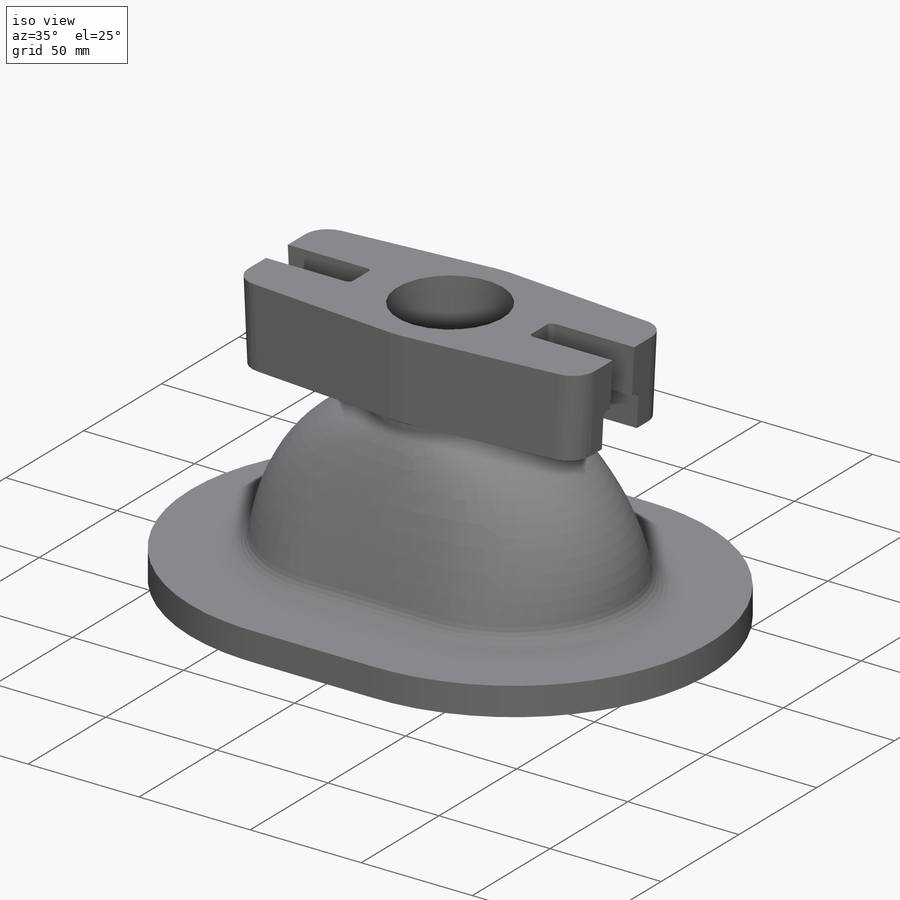
[diagram: iso view]
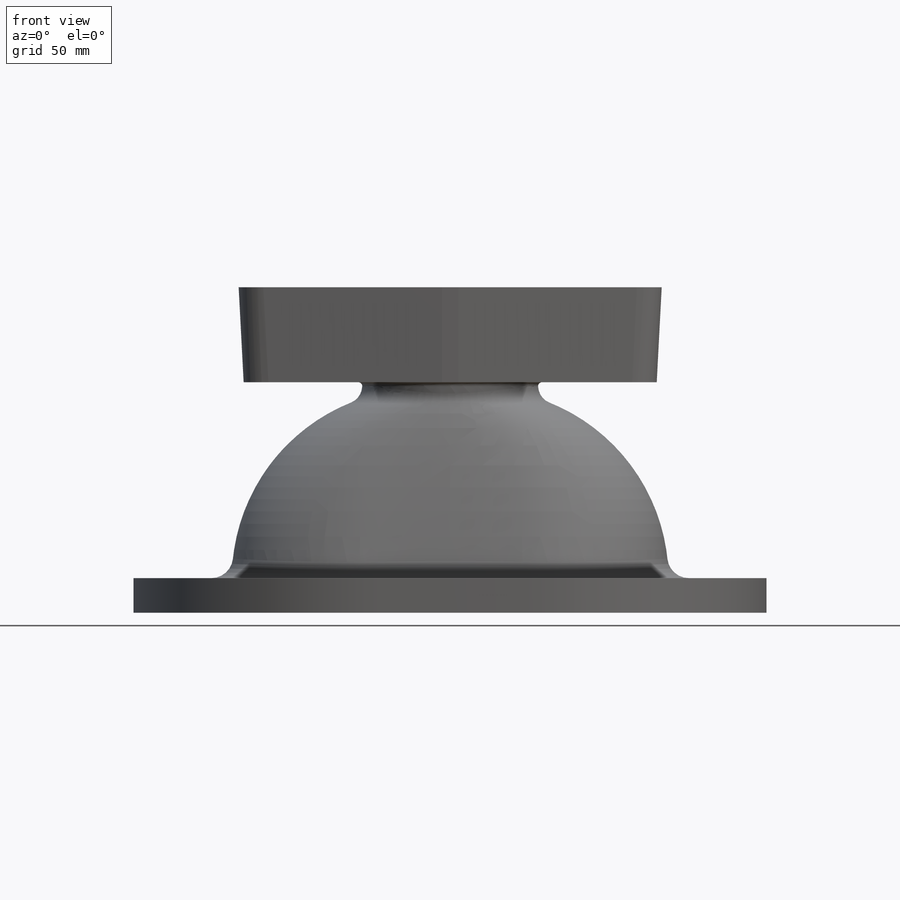
[diagram: front view]
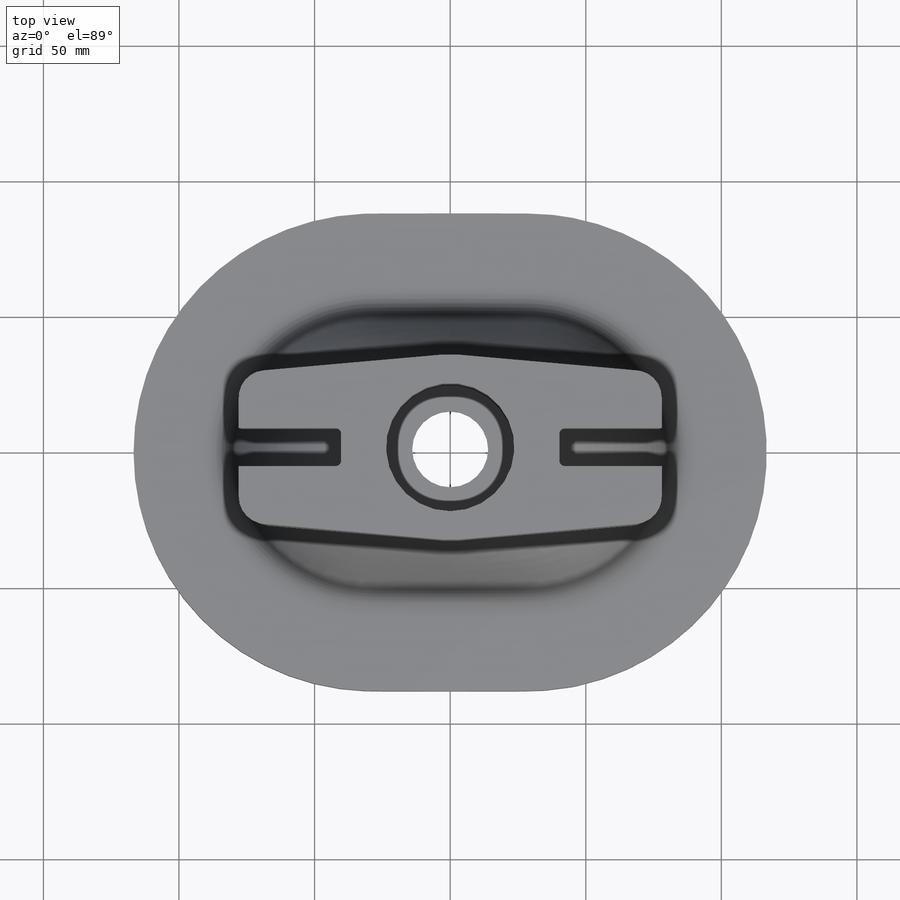
[diagram: top view]
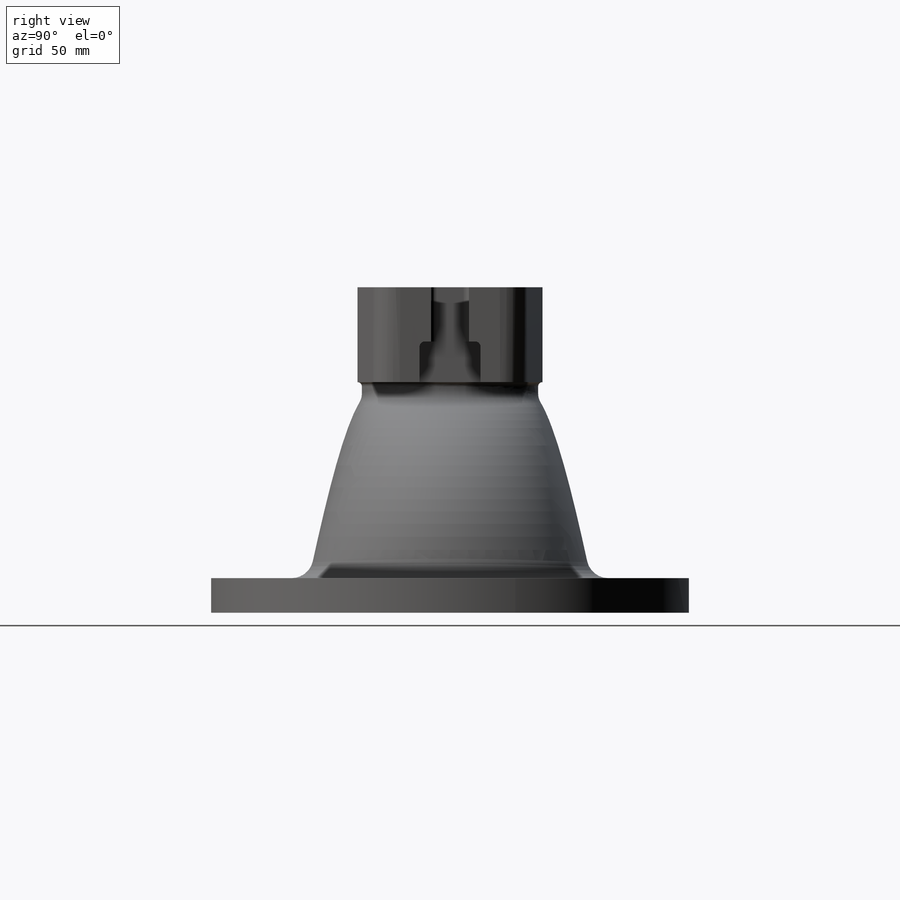
[diagram: right view]
SOLIDWORKS PART (.sldprt)
format: sldprt  version: not decoded by parser v0  size: 786,944 bytes
history: native  units: mm
features: sketch x15, fillet x8, extrude x5, cut_extrude x5, material x1, plane x1, shell x1, sweep x1, mirror x1 (+11 scaffold rows collapsed)
feature tree (49):
  scaffold x11  (default folders/planes/origin — collapsed)
  material  "Material <not specified>"
  sketch  "Sketch1"  dims[c1.D1=40.5mm c1.D2=161.0mm c1.D3=80.0mm c2.D1=104.0mm]
  plane  "Plane1"  Offset=66.5mm
  sketch  "Sketch2"  dims[D1=65.0mm]
  sketch  "Sketch3"  dims[D1=70.0mm]
  shell  "Shell1"  Thickness=7mm
  sketch  "Sketch4"  dims[c1.D1=233.5mm c1.D2=~167.507948mm c2.D1=15.0mm]
  extrude  "Boss-Extrude2"  Depth=12.5mm
  sketch  "Sketch5"
  extrude  "Boss-Extrude3"  Depth=6mm
  sketch  "Sketch7"  dims[D4=68.5mm D1=55.0mm D2=68.5mm D3=156.0mm]
  extrude  "Boss-Extrude4"  Depth=15mm
  sketch  "Sketch8"  dims[c1.D2=80.5mm c1.D1=80.5mm c2.D2=22.5mm c2.D3=40.25mm c2.D4=40.25mm c2.D1=80.5mm c3.D2=22.5mm]
  cut_extrude  "Cut-Extrude1"  Depth=20mm
  sketch  "Sketch9"  dims[D1=0.0mm]
  extrude  "Boss-Extrude5"  Depth=20mm
  sketch  "Sketch10"  dims[D1=80.5mm D2=14.0mm]
  cut_extrude  "Cut-Extrude2"  Depth=27.5mm
  sketch  "Sketch11"  dims[D1=28.0mm]
  cut_extrude  "Cut-Extrude3"  [1 undecoded]
  sketch  "Sketch12"  dims[D1=47.3mm]
  cut_extrude  "Cut-Extrude4"  Depth=45mm
  sketch  "Sketch14"  dims[D1=0.0mm]
  extrude  "Boss-Extrude6"  Depth=10mm
  sketch  "Sketch13"  dims[D1=51.0mm]
  cut_extrude  "Cut-Extrude5"  Depth=7.5mm
  sketch  "Sketch16"  dims[c1.D1=~50.563482mm c1.D2=10.0mm c2.D1=53.5mm c2.D3=~49.839015mm c2.D2=48.0mm]
  sketch  "Sketch17"  dims[D1=~34.211484mm D2=50.0mm]
  sweep  "Cut-Sweep1"
  mirror  "Mirror1"
  fillet  "Fillet1"  Radius=14mm
  fillet  "Fillet2"  Radius=8mm
  fillet  "Fillet10"  Radius=1.5mm
  fillet  "Fillet3"  Radius=6.5mm
  fillet  "Fillet6"  Radius=10mm
  fillet  "Fillet7"  Radius=2mm
  fillet  "Fillet8"  Radius=2mm
  fillet  "Fillet9"  Radius=20mm
decode coverage: 32 of 36 modeling features carry decoded parameters
note: ~ marks probable driven/reference dimensions
note: 1 parameter value undecoded
note: suppression state not decoded; provenance and decode notes live in map.json
